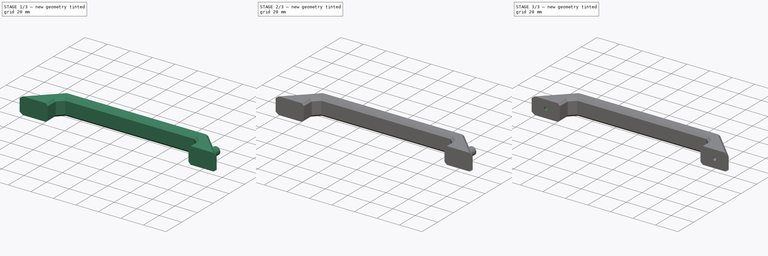
[diagram: build sequence overview — one tinted view per stage of 3, left to right]
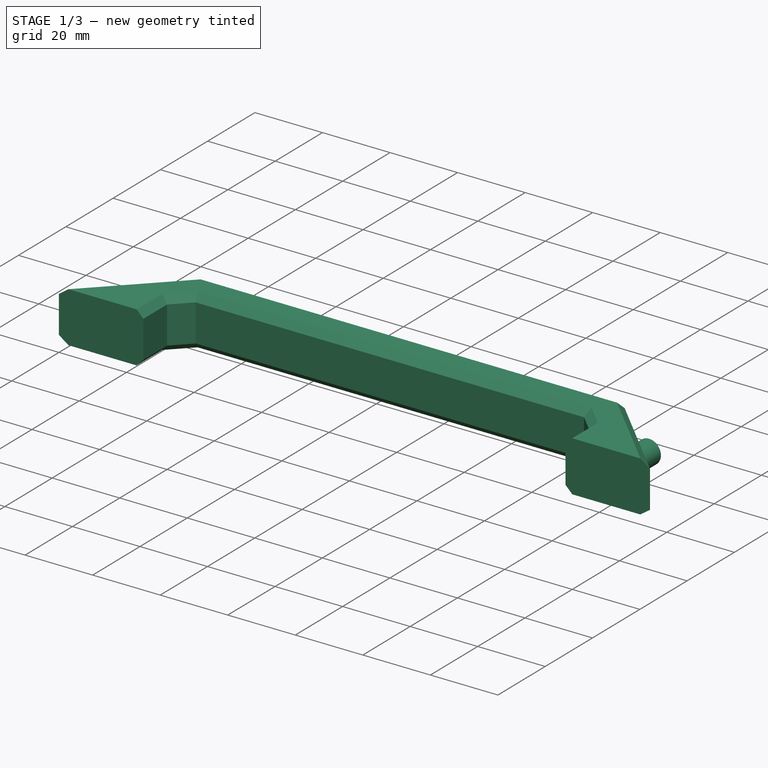
[diagram: stage 1 of 3 — iso view after this stage's code; geometry added in this stage tinted green]
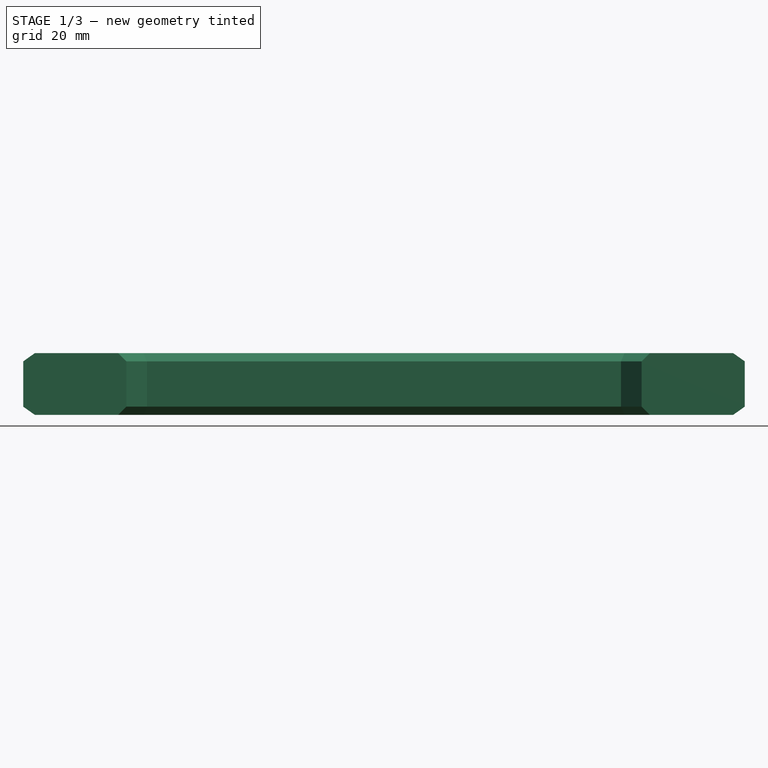
[diagram: stage 1 of 3 — front view after this stage's code; geometry added in this stage tinted green]
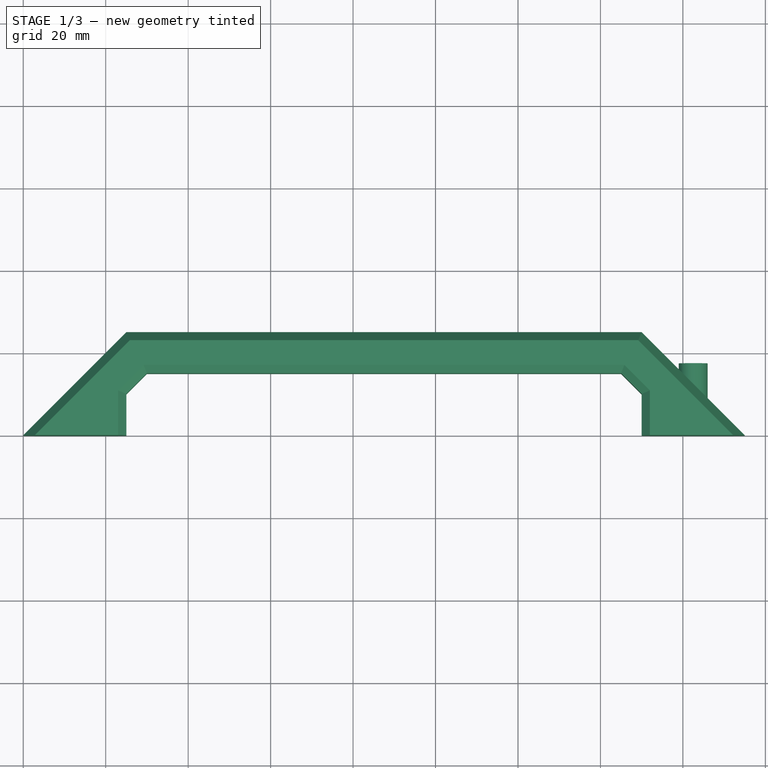
[diagram: stage 1 of 3 — top view after this stage's code; geometry added in this stage tinted green]
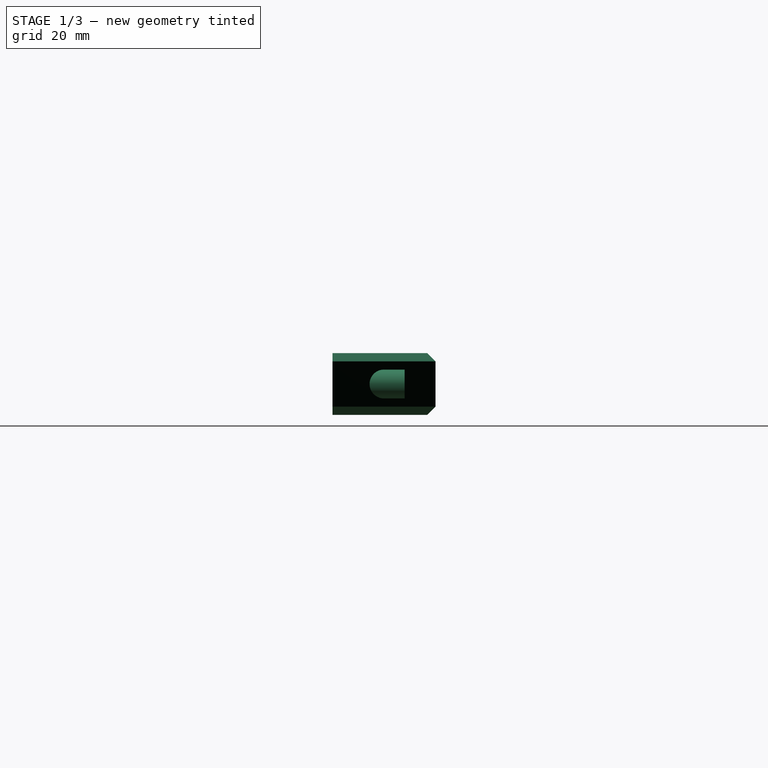
[diagram: stage 1 of 3 — right view after this stage's code; geometry added in this stage tinted green]
FCSTD DOCUMENT  (FreeCAD 0.18.4R)
Label: grip
License: All rights reserved
LicenseURL: http://en.wikipedia.org/wiki/All_rights_reserved
objects: Part::Cylinder×4, Sketcher::SketchObject×1, PartDesign::Body×1, Part::MultiFuse×1, Part::Extrusion×1, Part::Chamfer×1, Part::Cut×1
note: 10 computed .brp shape members not serialized (recipe doc carries the construction recipe); baked Part::Feature solids carry a one-line shape summary decoded from their .brp

FEATURE [Part::Cylinder] Cylinder003  label="screwheadhole001"
  Angle = 360
  AttacherType = Attacher::AttachEngine3D
  Height = 10
  Placement = pos=(162.5,17.5,7.5) rot=(1,0,0;1.5708rad)
  Radius = 3.5
FEATURE [Part::Extrusion] Extrude
  Base = -> Sketch
  Dir = (0,0,1)
  DirMode = 2
  FaceMakerClass = Part::FaceMakerBullseye
  LengthFwd = 15
  LengthRev = 0
  Solid = true
  Symmetric = false
FEATURE [Part::Chamfer] Chamfer
  Base = -> Extrude
  Edges = 16 edges r=2: [Edge6,Edge7,Edge9,Edge10,Edge12,Edge13,Edge15,Edge16,Edge18,Edge19,Edge24,Edge25,Edge27,Edge28,Edge29,Edge30]
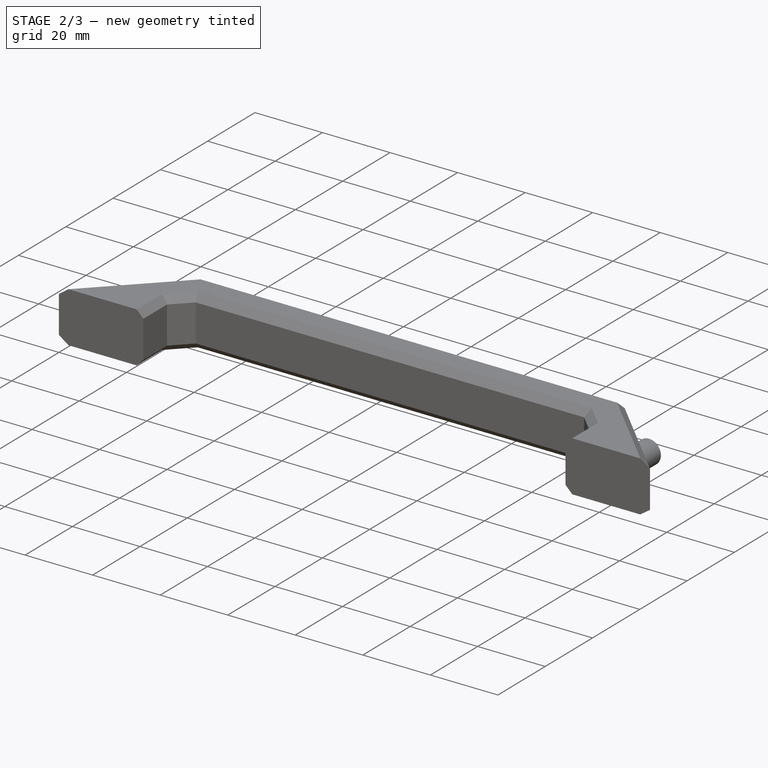
[diagram: stage 2 of 3 — iso view after this stage's code; geometry added in this stage tinted green]
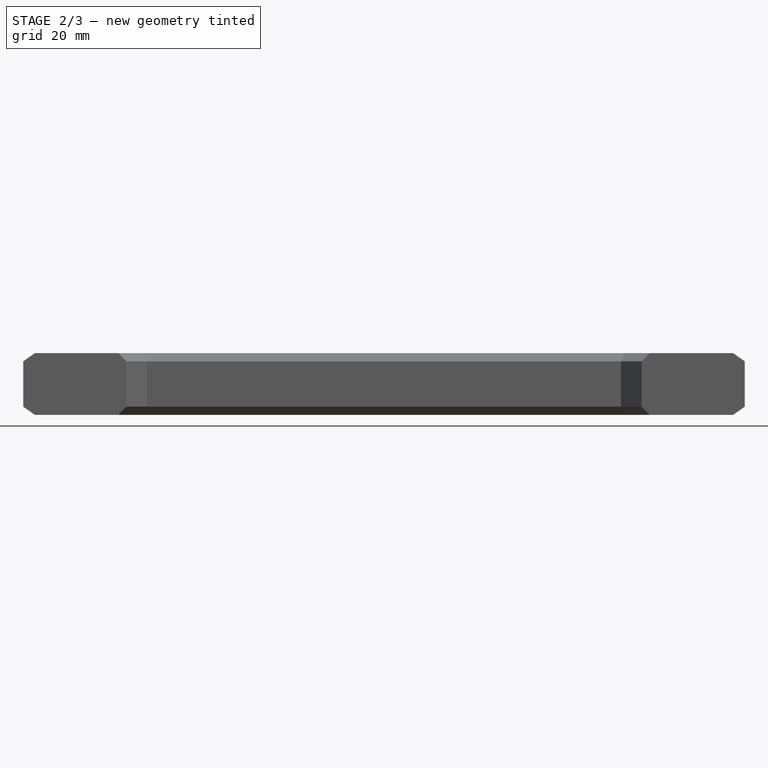
[diagram: stage 2 of 3 — front view after this stage's code; geometry added in this stage tinted green]
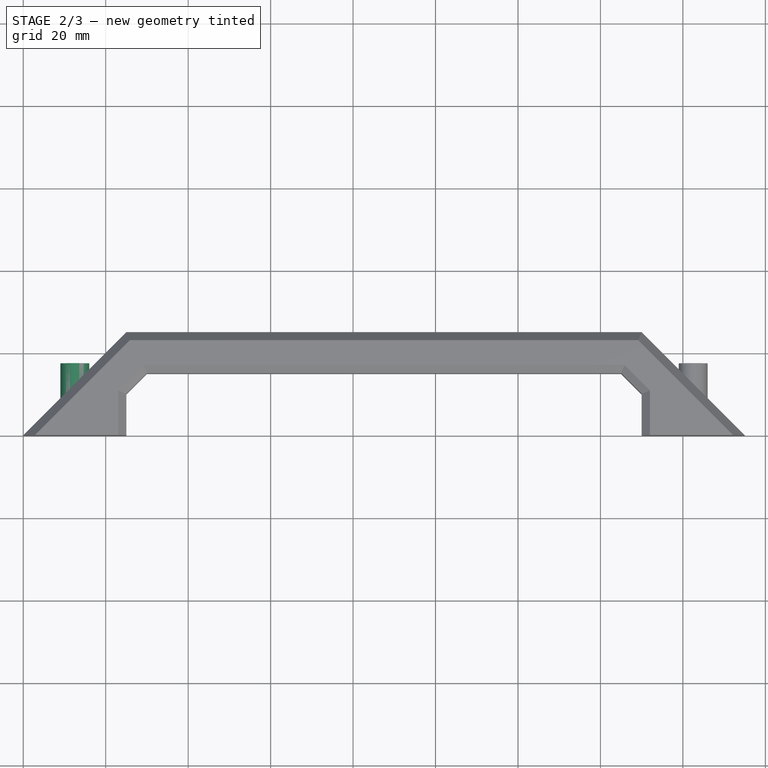
[diagram: stage 2 of 3 — top view after this stage's code; geometry added in this stage tinted green]
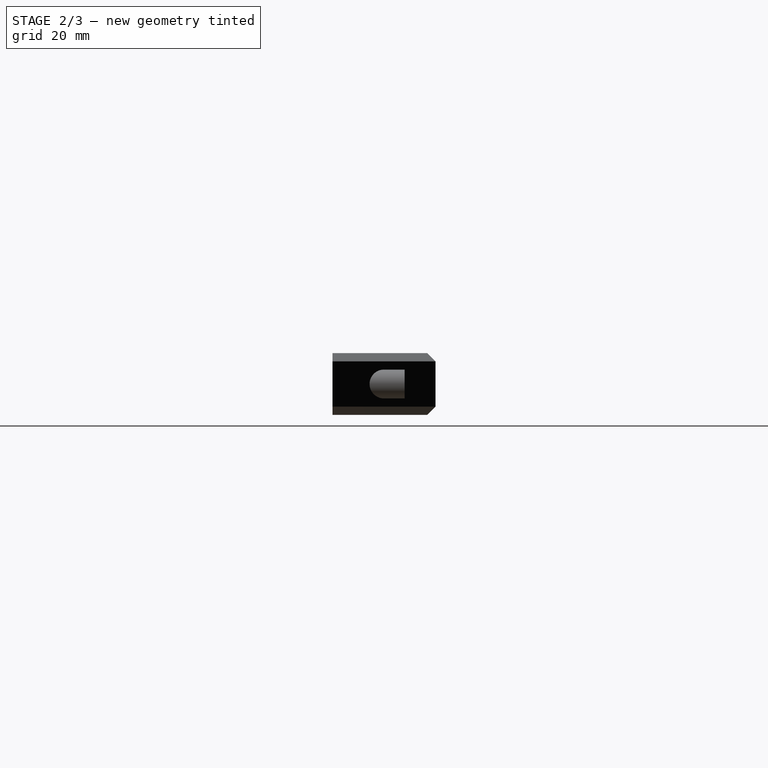
[diagram: stage 2 of 3 — right view after this stage's code; geometry added in this stage tinted green]
FEATURE [Part::Cylinder] Cylinder001  label="screwheadhole000"
  Angle = 360
  AttacherType = Attacher::AttachEngine3D
  Height = 10
  Placement = pos=(12.5,17.5,7.5) rot=(1,0,0;1.5708rad)
  Radius = 3.5
FEATURE [Part::Cylinder] Cylinder002  label="screwhole001"
  Angle = 360
  AttacherType = Attacher::AttachEngine3D
  Height = 7.5
  Placement = pos=(162.5,7.5,7.5) rot=(1,0,0;1.5708rad)
  Radius = 1.5
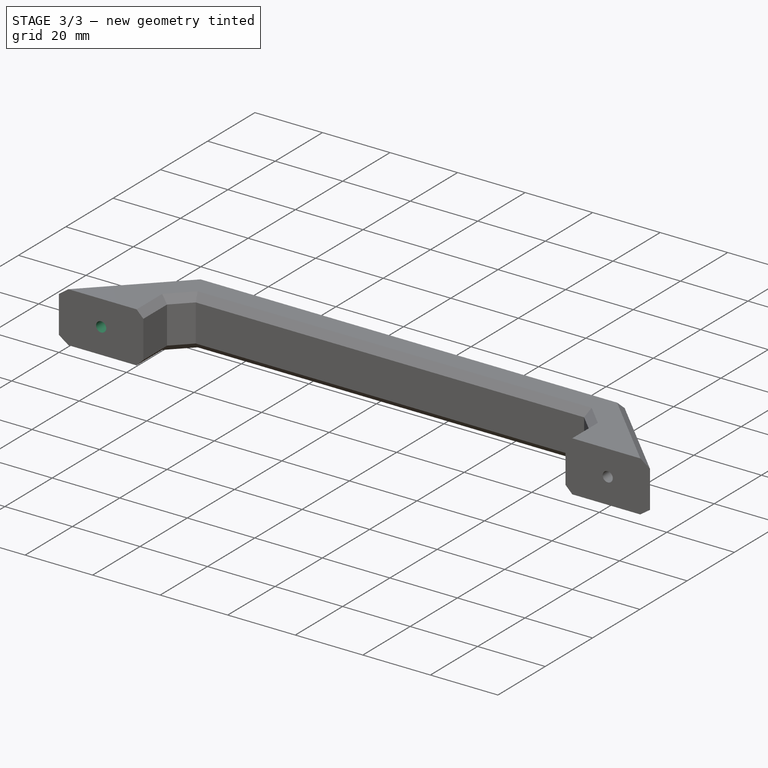
[diagram: stage 3 of 3 — iso view after this stage's code; geometry added in this stage tinted green]
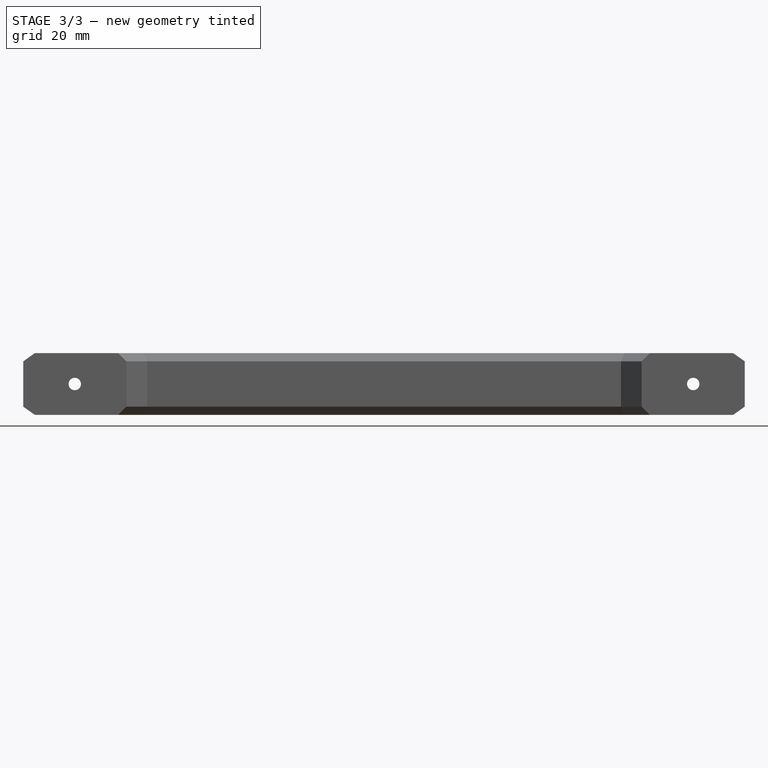
[diagram: stage 3 of 3 — front view after this stage's code; geometry added in this stage tinted green]
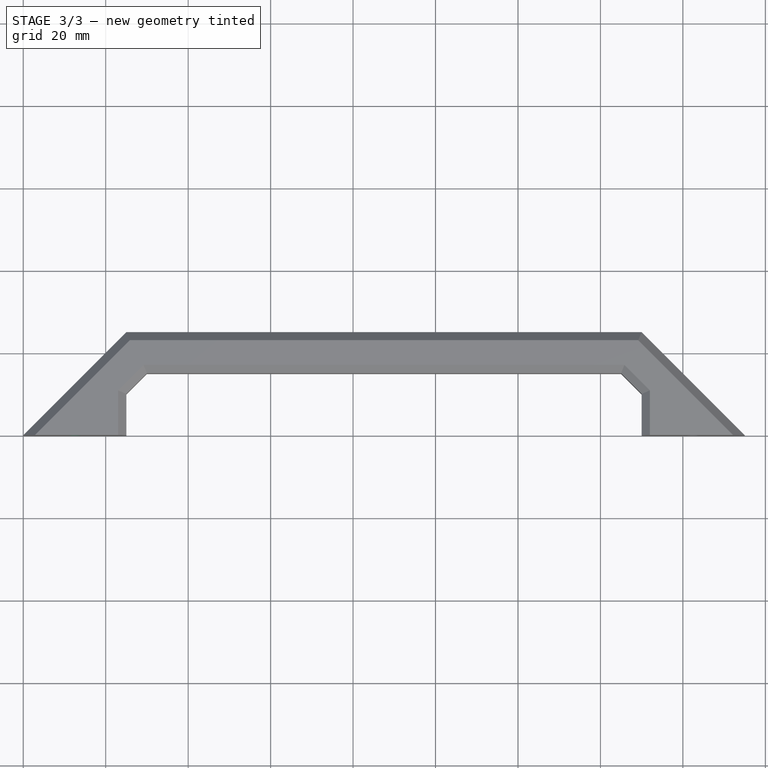
[diagram: stage 3 of 3 — top view after this stage's code; geometry added in this stage tinted green]
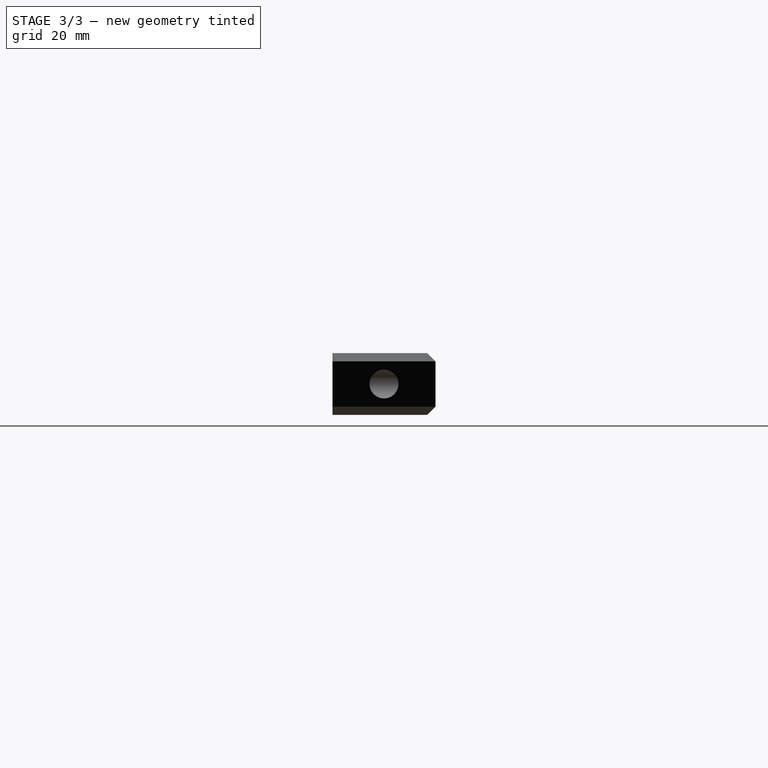
[diagram: stage 3 of 3 — right view after this stage's code; geometry added in this stage tinted green]
FEATURE [Sketcher::SketchObject] Sketch
  MapMode = 5
  Support = -> [XY_Plane]
  sketch-geometry (10):
    g0: LineSegment StartX=0 StartY=0 StartZ=0 EndX=25 EndY=0 EndZ=0
    g1: LineSegment StartX=150 StartY=0 StartZ=0 EndX=175 EndY=0 EndZ=0
    g2: LineSegment StartX=175 StartY=0 StartZ=0 EndX=150 EndY=25 EndZ=0
    g3: LineSegment StartX=150 StartY=25 StartZ=0 EndX=25 EndY=25 EndZ=0
    g4: LineSegment StartX=25 StartY=25 StartZ=0 EndX=0 EndY=0 EndZ=0
    g5: LineSegment StartX=25 StartY=0 StartZ=0 EndX=25 EndY=10 EndZ=0
    g6: LineSegment StartX=25 StartY=10 StartZ=0 EndX=30 EndY=15 EndZ=0
    g7: LineSegment StartX=30 StartY=15 StartZ=0 EndX=145 EndY=15 EndZ=0
    g8: LineSegment StartX=145 StartY=15 StartZ=0 EndX=150 EndY=10 EndZ=0
    g9: LineSegment StartX=150 StartY=10 StartZ=0 EndX=150 EndY=0 EndZ=0
  constraints (29):
    c: Coincident(g-1,g0)
    c: PointOnObject(g0,g-1)
    c: PointOnObject(g1,g-1)
    c: PointOnObject(g1,g-1)
    c: Coincident(g1,g2)
    c: Coincident(g2,g3)
    c: Horizontal(g3)
    c: Coincident(g3,g4)
    c: Coincident(g4,g0)
    c: DistanceX(g3,g3) = 125
    c: DistanceX(g0,g0) = 25
    c: DistanceY(g0,g3) = 25
    c: Coincident(g0,g5)
    c: Vertical(g5)
    c: Coincident(g5,g6)
    c: Coincident(g6,g7)
    c: Horizontal(g7)
    c: Coincident(g7,g8)
    c: Coincident(g8,g9)
    c: Coincident(g9,g1)
    c: Vertical(g9)
    c: DistanceY(g5,g5) = 10
    c: Equal(g5,g9)
    c: Equal(g6,g8)
    c: Angle(g6,g7) = 2.35619
    c: DistanceY(g0,g6) = 15
    c: Angle(g0,g4) = 0.785398
    c: Equal(g0,g1)
    c: Equal(g4,g2)
FEATURE [PartDesign::Body] Body
  Group = -> [Sketch]
  Origin = -> Origin
FEATURE [Part::Cylinder] Cylinder  label="screwhole000"
  Angle = 360
  AttacherType = Attacher::AttachEngine3D
  Height = 7.5
  Placement = pos=(12.5,7.5,7.5) rot=(1,0,0;1.5708rad)
  Radius = 1.5
FEATURE [Part::MultiFuse] Fusion
  Shapes = -> [Cylinder,Cylinder001,Cylinder002,Cylinder003]
FEATURE [Part::Cut] Cut
  Base = -> Chamfer
  Tool = -> Fusion
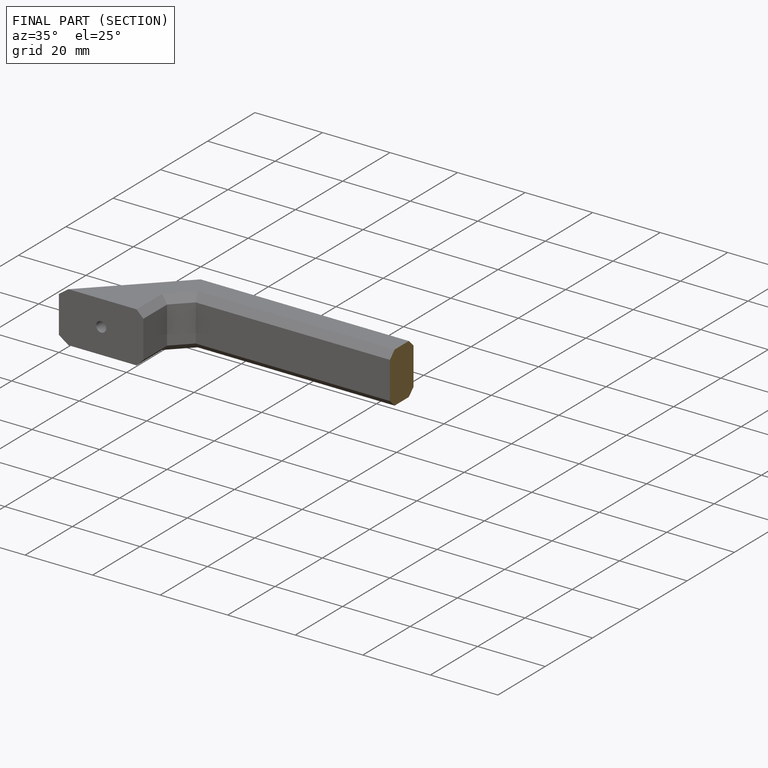
[diagram: finished part — half-section view (interior)]
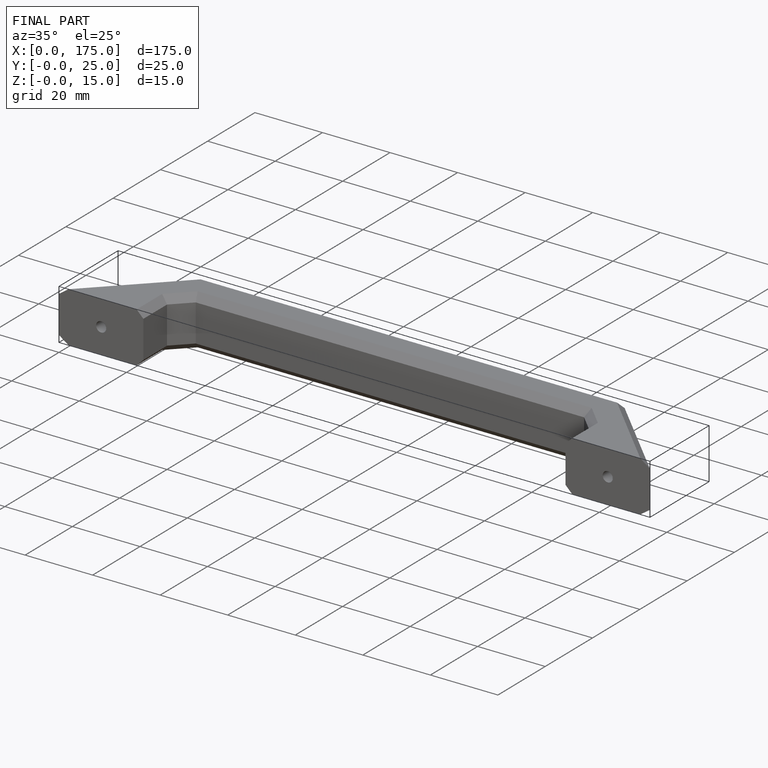
[diagram: finished part — iso view with bounding-box wireframe]
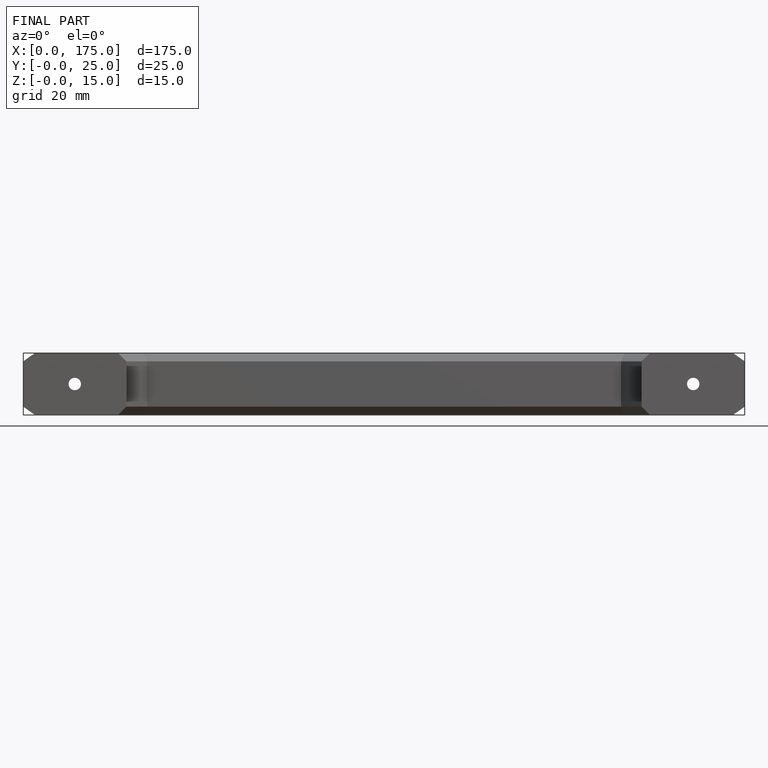
[diagram: finished part — front view with bounding-box wireframe]
